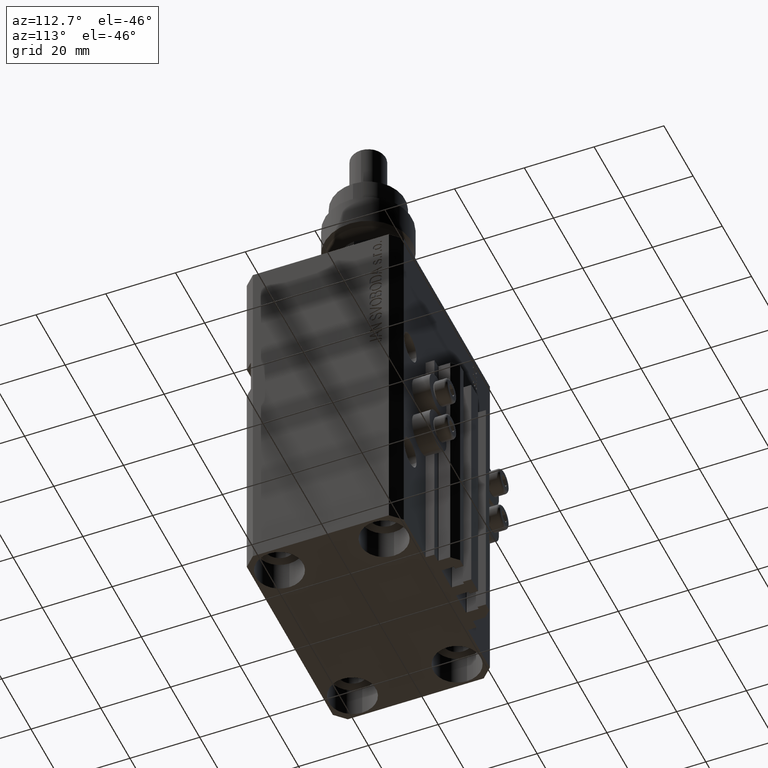
[diagram: clean part render]
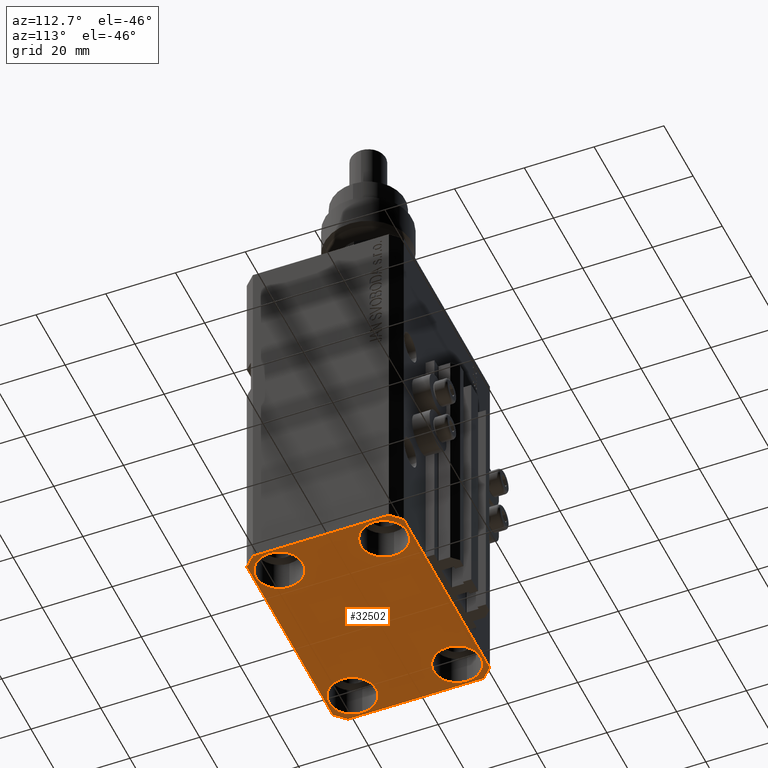
[diagram: same view with one face highlighted and labeled with its STEP entity id]
A machine part, auxiliary view. The second image highlights one B-rep face of the part: STEP entity #32502.
In plain terms, the highlighted planar face has unit normal (0, 0, 1).
Its self-contained STEP definition (entity closure, byte-faithful):
#339 = CARTESIAN_POINT ( 'NONE',  ( -18.24999999997747224, 15.00000000000000000, -107.0000000000000000 ) ) ;
#442 = VECTOR ( 'NONE', #47137, 1000.000000000000114 ) ;
#459 = CARTESIAN_POINT ( 'NONE',  ( -29.49999999999650413, -22.49999999999949907, -107.0000000000000000 ) ) ;
#803 = DIRECTION ( 'NONE',  ( 1.000000000000000000, 0.000000000000000000, 0.000000000000000000 ) ) ;
#1541 = ORIENTED_EDGE ( 'NONE', *, *, #36566, .T. ) ;
#1834 = EDGE_CURVE ( 'NONE', #8973, #27579, #26154, .T. ) ;
#2130 = EDGE_CURVE ( 'NONE', #25850, #9477, #4274, .T. ) ;
#2149 = CARTESIAN_POINT ( 'NONE',  ( -32.49999999999650413, 19.49999999999949907, -107.0000000000000000 ) ) ;
#2898 = FACE_BOUND ( 'NONE', #39597, .T. ) ;
#3394 = DIRECTION ( 'NONE',  ( -0.000000000000000000, -0.000000000000000000, 1.000000000000000000 ) ) ;
#3890 = CARTESIAN_POINT ( 'NONE',  ( 25.00000000000000355, -15.00000000000000000, -107.0000000000000000 ) ) ;
#4274 = LINE ( 'NONE', #23192, #9864 ) ;
#5541 = VERTEX_POINT ( 'NONE', #33587 ) ;
#5821 = ORIENTED_EDGE ( 'NONE', *, *, #29625, .T. ) ;
#7806 = LINE ( 'NONE', #46630, #442 ) ;
#8080 = CARTESIAN_POINT ( 'NONE',  ( 32.49999999999702993, 19.49999999999945999, -107.0000000000000000 ) ) ;
#8520 = CARTESIAN_POINT ( 'NONE',  ( 0.000000000000000000, 0.000000000000000000, -107.0000000000000000 ) ) ;
#8645 = CIRCLE ( 'NONE', #19253, 6.750000000041541881 ) ;
#8973 = VERTEX_POINT ( 'NONE', #13624 ) ;
#9178 = VERTEX_POINT ( 'NONE', #48782 ) ;
#9435 = CIRCLE ( 'NONE', #37971, 6.749999999958452790 ) ;
#9477 = VERTEX_POINT ( 'NONE', #11509 ) ;
#9864 = VECTOR ( 'NONE', #19872, 1000.000000000000000 ) ;
#10429 = ORIENTED_EDGE ( 'NONE', *, *, #29020, .F. ) ;
#10544 = DIRECTION ( 'NONE',  ( -0.000000000000000000, -0.000000000000000000, 1.000000000000000000 ) ) ;
#10566 = FACE_BOUND ( 'NONE', #31683, .T. ) ;
#10724 = VECTOR ( 'NONE', #23163, 1000.000000000000000 ) ;
#10767 = ORIENTED_EDGE ( 'NONE', *, *, #2130, .F. ) ;
#11051 = DIRECTION ( 'NONE',  ( 1.000000000000000000, 0.000000000000000000, 0.000000000000000000 ) ) ;
#11314 = VERTEX_POINT ( 'NONE', #46090 ) ;
#11509 = CARTESIAN_POINT ( 'NONE',  ( 32.49999999999702993, 19.49999999999945999, -107.0000000000000000 ) ) ;
#12117 = CARTESIAN_POINT ( 'NONE',  ( 31.74999999997746869, -15.00000000000000000, -107.0000000000000000 ) ) ;
#12830 = VERTEX_POINT ( 'NONE', #34404 ) ;
#13384 = DIRECTION ( 'NONE',  ( -0.000000000000000000, -0.000000000000000000, 1.000000000000000000 ) ) ;
#13624 = CARTESIAN_POINT ( 'NONE',  ( -31.75000000002253842, 15.00000000000000000, -107.0000000000000000 ) ) ;
#13908 = CARTESIAN_POINT ( 'NONE',  ( 29.49999999999650413, -22.49999999999949196, -107.0000000000000000 ) ) ;
#14564 = CARTESIAN_POINT ( 'NONE',  ( -31.75000000004154899, -15.00000000000000000, -107.0000000000000000 ) ) ;
#14631 = VERTEX_POINT ( 'NONE', #26018 ) ;
#15064 = EDGE_CURVE ( 'NONE', #20606, #38951, #7806, .T. ) ;
#15263 = VECTOR ( 'NONE', #29485, 1000.000000000000000 ) ;
#15862 = DIRECTION ( 'NONE',  ( -0.000000000000000000, -0.000000000000000000, 1.000000000000000000 ) ) ;
#16459 = VERTEX_POINT ( 'NONE', #49596 ) ;
#16667 = VERTEX_POINT ( 'NONE', #14564 ) ;
#17083 = AXIS2_PLACEMENT_3D ( 'NONE', #43957, #28646, #40637 ) ;
#17632 = AXIS2_PLACEMENT_3D ( 'NONE', #3890, #30968, #46556 ) ;
#17653 = LINE ( 'NONE', #25308, #37281 ) ;
#17744 = DIRECTION ( 'NONE',  ( 0.000000000000000000, -1.000000000000000000, 0.000000000000000000 ) ) ;
#17759 = EDGE_CURVE ( 'NONE', #27579, #8973, #29905, .T. ) ;
#18322 = CARTESIAN_POINT ( 'NONE',  ( -29.49999999999650413, -22.49999999999949907, -107.0000000000000000 ) ) ;
#18862 = EDGE_CURVE ( 'NONE', #11314, #16459, #25133, .T. ) ;
#19253 = AXIS2_PLACEMENT_3D ( 'NONE', #34790, #10544, #11051 ) ;
#19601 = DIRECTION ( 'NONE',  ( 1.000000000000000000, 0.000000000000000000, 0.000000000000000000 ) ) ;
#19731 = DIRECTION ( 'NONE',  ( -0.000000000000000000, -0.000000000000000000, 1.000000000000000000 ) ) ;
#19872 = DIRECTION ( 'NONE',  ( 1.334402673828349134E-14, 1.000000000000000000, 0.000000000000000000 ) ) ;
#20035 = EDGE_CURVE ( 'NONE', #9178, #27632, #40675, .T. ) ;
#20049 = CIRCLE ( 'NONE', #46147, 6.750000000041541881 ) ;
#20606 = VERTEX_POINT ( 'NONE', #25749 ) ;
#20965 = CARTESIAN_POINT ( 'NONE',  ( 29.49999999999650413, -22.49999999999949196, -107.0000000000000000 ) ) ;
#21155 = ORIENTED_EDGE ( 'NONE', *, *, #17759, .T. ) ;
#22150 = LINE ( 'NONE', #18322, #36546 ) ;
#22556 = CARTESIAN_POINT ( 'NONE',  ( 32.49999999999651124, -19.49999999999949196, -107.0000000000000000 ) ) ;
#22910 = LINE ( 'NONE', #8080, #10724 ) ;
#23163 = DIRECTION ( 'NONE',  ( -0.7071067811865352493, 0.7071067811865597852, 0.000000000000000000 ) ) ;
#23192 = CARTESIAN_POINT ( 'NONE',  ( 32.49999999999651124, -19.49999999999949196, -107.0000000000000000 ) ) ;
#23743 = ORIENTED_EDGE ( 'NONE', *, *, #44355, .F. ) ;
#24096 = DIRECTION ( 'NONE',  ( 0.000000000000000000, 0.000000000000000000, 1.000000000000000000 ) ) ;
#25133 = LINE ( 'NONE', #44543, #42991 ) ;
#25308 = CARTESIAN_POINT ( 'NONE',  ( 29.49999999999707967, 22.49999999999951328, -107.0000000000000000 ) ) ;
#25521 = ORIENTED_EDGE ( 'NONE', *, *, #32350, .F. ) ;
#25675 = EDGE_CURVE ( 'NONE', #27632, #9178, #9435, .T. ) ;
#25749 = CARTESIAN_POINT ( 'NONE',  ( -32.49999999999650413, -19.49999999999949907, -107.0000000000000000 ) ) ;
#25787 = EDGE_CURVE ( 'NONE', #16667, #14631, #8645, .T. ) ;
#25795 = CIRCLE ( 'NONE', #17632, 6.749999999977465137 ) ;
#25850 = VERTEX_POINT ( 'NONE', #22556 ) ;
#25895 = EDGE_CURVE ( 'NONE', #14631, #16667, #20049, .T. ) ;
#26018 = CARTESIAN_POINT ( 'NONE',  ( -18.24999999995845812, -15.00000000000000000, -107.0000000000000000 ) ) ;
#26154 = CIRCLE ( 'NONE', #49009, 6.750000000022533087 ) ;
#26445 = ORIENTED_EDGE ( 'NONE', *, *, #18862, .F. ) ;
#26897 = DIRECTION ( 'NONE',  ( 1.000000000000000000, 0.000000000000000000, 0.000000000000000000 ) ) ;
#27579 = VERTEX_POINT ( 'NONE', #339 ) ;
#27632 = VERTEX_POINT ( 'NONE', #43506 ) ;
#27754 = ORIENTED_EDGE ( 'NONE', *, *, #25895, .T. ) ;
#27925 = DIRECTION ( 'NONE',  ( 1.000000000000000000, 0.000000000000000000, -0.000000000000000000 ) ) ;
#28646 = DIRECTION ( 'NONE',  ( -0.000000000000000000, -0.000000000000000000, 1.000000000000000000 ) ) ;
#29020 = EDGE_CURVE ( 'NONE', #12830, #11314, #17653, .T. ) ;
#29485 = DIRECTION ( 'NONE',  ( 0.7071067811865483499, 0.7071067811865466846, 0.000000000000000000 ) ) ;
#29625 = EDGE_CURVE ( 'NONE', #45730, #5541, #25795, .T. ) ;
#29905 = CIRCLE ( 'NONE', #47830, 6.750000000022533087 ) ;
#30064 = AXIS2_PLACEMENT_3D ( 'NONE', #42412, #15862, #35513 ) ;
#30179 = ORIENTED_EDGE ( 'NONE', *, *, #25675, .T. ) ;
#30968 = DIRECTION ( 'NONE',  ( -0.000000000000000000, -0.000000000000000000, 1.000000000000000000 ) ) ;
#31683 = EDGE_LOOP ( 'NONE', ( #34205, #27754 ) ) ;
#32350 = EDGE_CURVE ( 'NONE', #45149, #25850, #48874, .T. ) ;
#32502 = ADVANCED_FACE ( 'NONE', ( #10566, #2898, #49632, #43239, #43499 ), #35329, .F. ) ;
#33587 = CARTESIAN_POINT ( 'NONE',  ( 18.25000000002253842, -15.00000000000000000, -107.0000000000000000 ) ) ;
#33639 = EDGE_LOOP ( 'NONE', ( #30179, #48107 ) ) ;
#33781 = DIRECTION ( 'NONE',  ( 1.000000000000000000, 0.000000000000000000, 0.000000000000000000 ) ) ;
#34205 = ORIENTED_EDGE ( 'NONE', *, *, #25787, .T. ) ;
#34294 = EDGE_CURVE ( 'NONE', #38951, #45149, #22150, .T. ) ;
#34404 = CARTESIAN_POINT ( 'NONE',  ( 29.49999999999707967, 22.49999999999951328, -107.0000000000000000 ) ) ;
#34790 = CARTESIAN_POINT ( 'NONE',  ( -25.00000000000000355, -15.00000000000000000, -107.0000000000000000 ) ) ;
#34908 = DIRECTION ( 'NONE',  ( -0.000000000000000000, -0.000000000000000000, 1.000000000000000000 ) ) ;
#35329 = PLANE ( 'NONE',  #46254 ) ;
#35513 = DIRECTION ( 'NONE',  ( 1.000000000000000000, 0.000000000000000000, 0.000000000000000000 ) ) ;
#35662 = LINE ( 'NONE', #2149, #43233 ) ;
#36546 = VECTOR ( 'NONE', #37721, 1000.000000000000000 ) ;
#36566 = EDGE_CURVE ( 'NONE', #5541, #45730, #38290, .T. ) ;
#37281 = VECTOR ( 'NONE', #48548, 1000.000000000000000 ) ;
#37721 = DIRECTION ( 'NONE',  ( 1.000000000000000000, 1.176083712526788232E-16, 0.000000000000000000 ) ) ;
#37971 = AXIS2_PLACEMENT_3D ( 'NONE', #41446, #13384, #33781 ) ;
#38290 = CIRCLE ( 'NONE', #17083, 6.749999999977465137 ) ;
#38534 = ORIENTED_EDGE ( 'NONE', *, *, #1834, .T. ) ;
#38951 = VERTEX_POINT ( 'NONE', #459 ) ;
#39388 = CARTESIAN_POINT ( 'NONE',  ( -25.00000000000000355, -15.00000000000000000, -107.0000000000000000 ) ) ;
#39597 = EDGE_LOOP ( 'NONE', ( #1541, #5821 ) ) ;
#40464 = DIRECTION ( 'NONE',  ( -0.7071067811865474617, -0.7071067811865474617, 0.000000000000000000 ) ) ;
#40637 = DIRECTION ( 'NONE',  ( 1.000000000000000000, 0.000000000000000000, 0.000000000000000000 ) ) ;
#40675 = CIRCLE ( 'NONE', #30064, 6.749999999958452790 ) ;
#41446 = CARTESIAN_POINT ( 'NONE',  ( 24.99999999999999645, 15.00000000000000888, -107.0000000000000000 ) ) ;
#42412 = CARTESIAN_POINT ( 'NONE',  ( 24.99999999999999645, 15.00000000000000888, -107.0000000000000000 ) ) ;
#42467 = CARTESIAN_POINT ( 'NONE',  ( -25.00000000000000355, 15.00000000000000000, -107.0000000000000000 ) ) ;
#42991 = VECTOR ( 'NONE', #40464, 1000.000000000000114 ) ;
#43032 = EDGE_LOOP ( 'NONE', ( #10429, #23743, #10767, #25521, #43423, #43675, #46613, #26445 ) ) ;
#43233 = VECTOR ( 'NONE', #17744, 1000.000000000000000 ) ;
#43239 = FACE_BOUND ( 'NONE', #50399, .T. ) ;
#43423 = ORIENTED_EDGE ( 'NONE', *, *, #34294, .F. ) ;
#43499 = FACE_OUTER_BOUND ( 'NONE', #43032, .T. ) ;
#43506 = CARTESIAN_POINT ( 'NONE',  ( 18.25000000004154543, 15.00000000000000888, -107.0000000000000000 ) ) ;
#43675 = ORIENTED_EDGE ( 'NONE', *, *, #15064, .F. ) ;
#43957 = CARTESIAN_POINT ( 'NONE',  ( 25.00000000000000355, -15.00000000000000000, -107.0000000000000000 ) ) ;
#44355 = EDGE_CURVE ( 'NONE', #9477, #12830, #22910, .T. ) ;
#44543 = CARTESIAN_POINT ( 'NONE',  ( -29.49999999999650413, 22.49999999999949907, -107.0000000000000000 ) ) ;
#45149 = VERTEX_POINT ( 'NONE', #20965 ) ;
#45730 = VERTEX_POINT ( 'NONE', #12117 ) ;
#46090 = CARTESIAN_POINT ( 'NONE',  ( -29.49999999999650413, 22.49999999999949907, -107.0000000000000000 ) ) ;
#46147 = AXIS2_PLACEMENT_3D ( 'NONE', #39388, #19731, #803 ) ;
#46254 = AXIS2_PLACEMENT_3D ( 'NONE', #8520, #24096, #27925 ) ;
#46417 = CARTESIAN_POINT ( 'NONE',  ( -25.00000000000000355, 15.00000000000000000, -107.0000000000000000 ) ) ;
#46556 = DIRECTION ( 'NONE',  ( 1.000000000000000000, 0.000000000000000000, 0.000000000000000000 ) ) ;
#46613 = ORIENTED_EDGE ( 'NONE', *, *, #47019, .F. ) ;
#46630 = CARTESIAN_POINT ( 'NONE',  ( -32.49999999999650413, -19.49999999999949907, -107.0000000000000000 ) ) ;
#47019 = EDGE_CURVE ( 'NONE', #16459, #20606, #35662, .T. ) ;
#47137 = DIRECTION ( 'NONE',  ( 0.7071067811865474617, -0.7071067811865474617, 0.000000000000000000 ) ) ;
#47830 = AXIS2_PLACEMENT_3D ( 'NONE', #46417, #34908, #19601 ) ;
#48107 = ORIENTED_EDGE ( 'NONE', *, *, #20035, .T. ) ;
#48548 = DIRECTION ( 'NONE',  ( -1.000000000000000000, -2.352167425053553784E-16, 0.000000000000000000 ) ) ;
#48782 = CARTESIAN_POINT ( 'NONE',  ( 31.74999999995845101, 15.00000000000000888, -107.0000000000000000 ) ) ;
#48874 = LINE ( 'NONE', #13908, #15263 ) ;
#49009 = AXIS2_PLACEMENT_3D ( 'NONE', #42467, #3394, #26897 ) ;
#49596 = CARTESIAN_POINT ( 'NONE',  ( -32.49999999999650413, 19.49999999999949907, -107.0000000000000000 ) ) ;
#49632 = FACE_BOUND ( 'NONE', #33639, .T. ) ;
#50399 = EDGE_LOOP ( 'NONE', ( #38534, #21155 ) ) ;